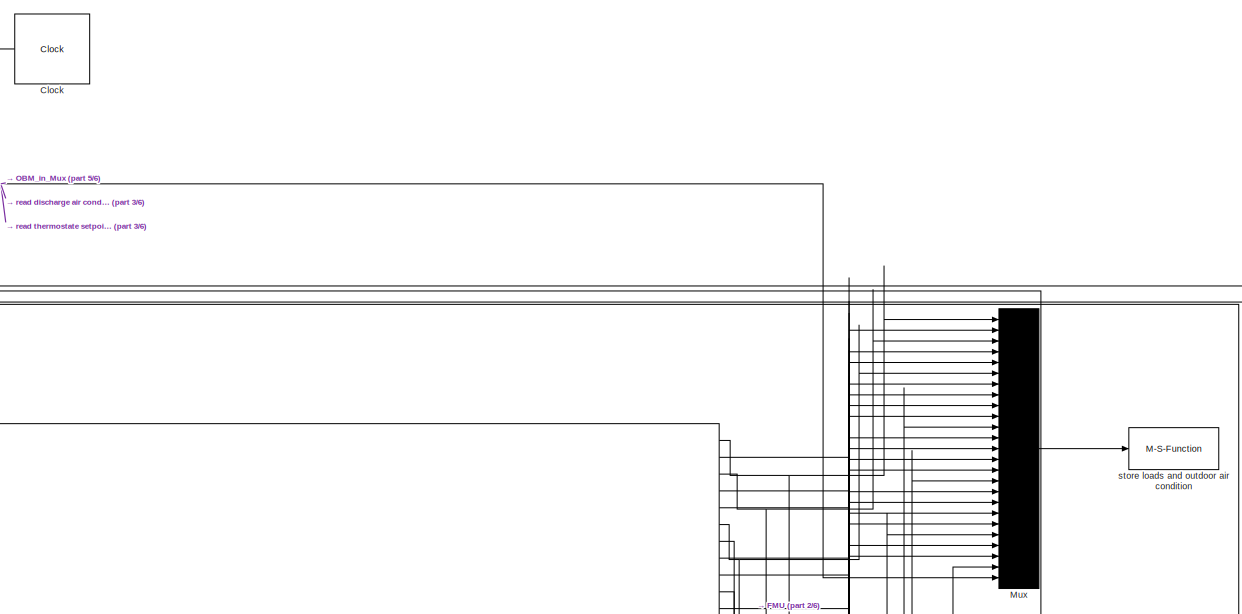
[diagram: root canvas - part 1/6, top right region]
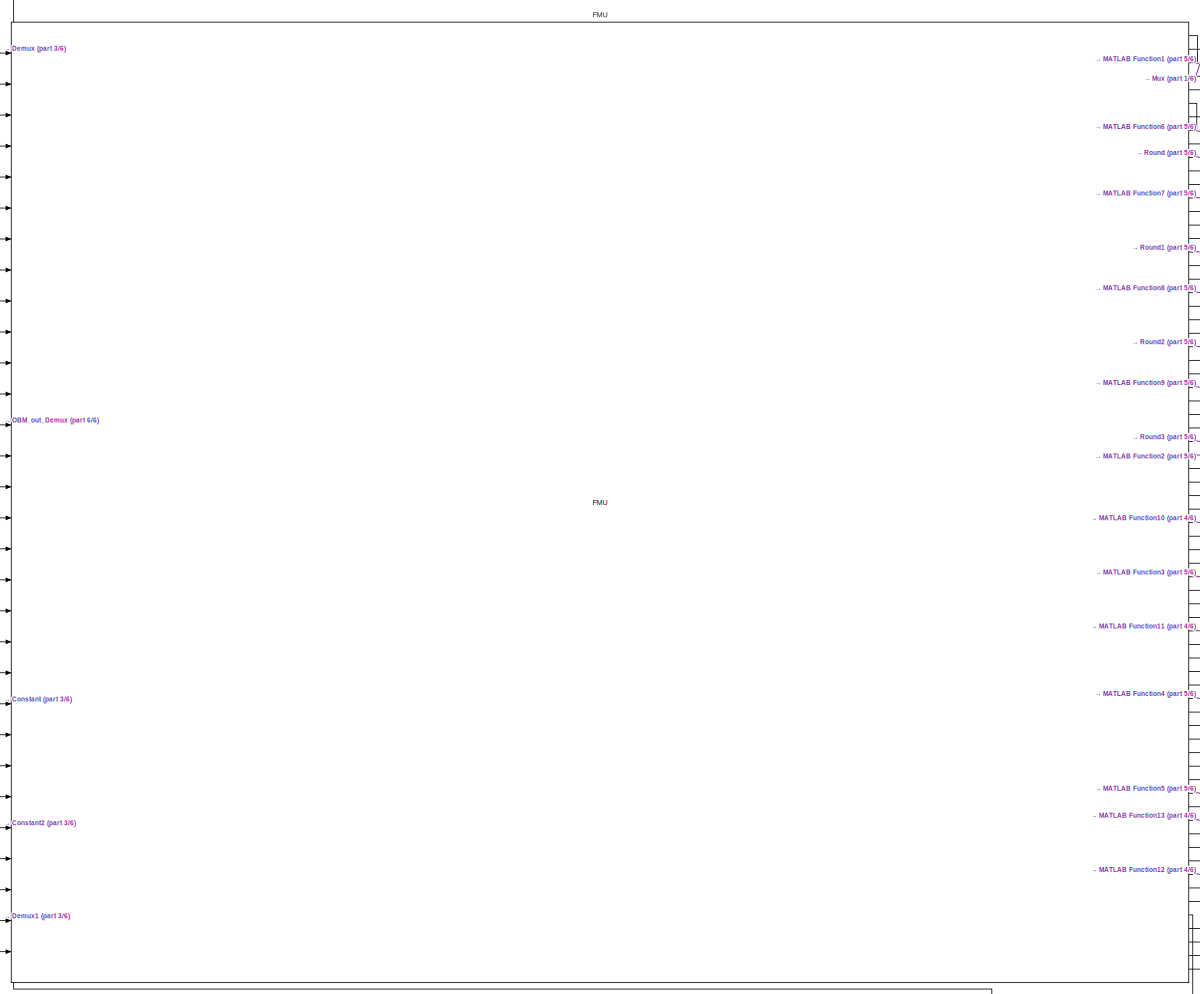
[diagram: root canvas - part 2/6, central region]
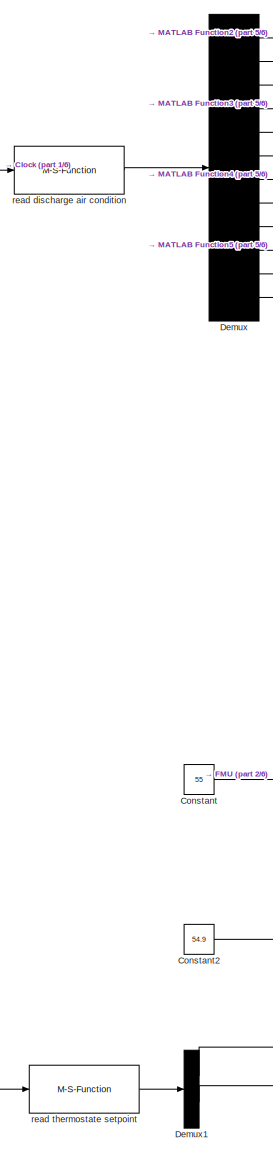
[diagram: root canvas - part 3/6, middle left region]
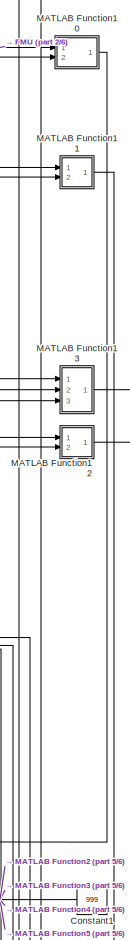
[diagram: root canvas - part 4/6, middle right region]
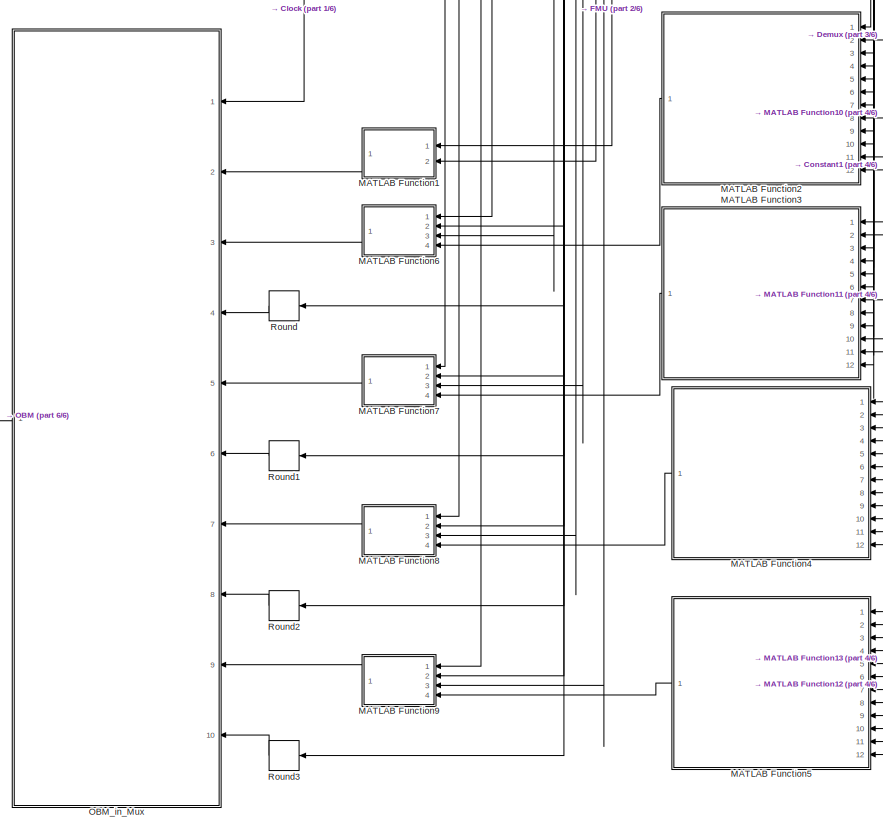
[diagram: root canvas - part 5/6, bottom right region]
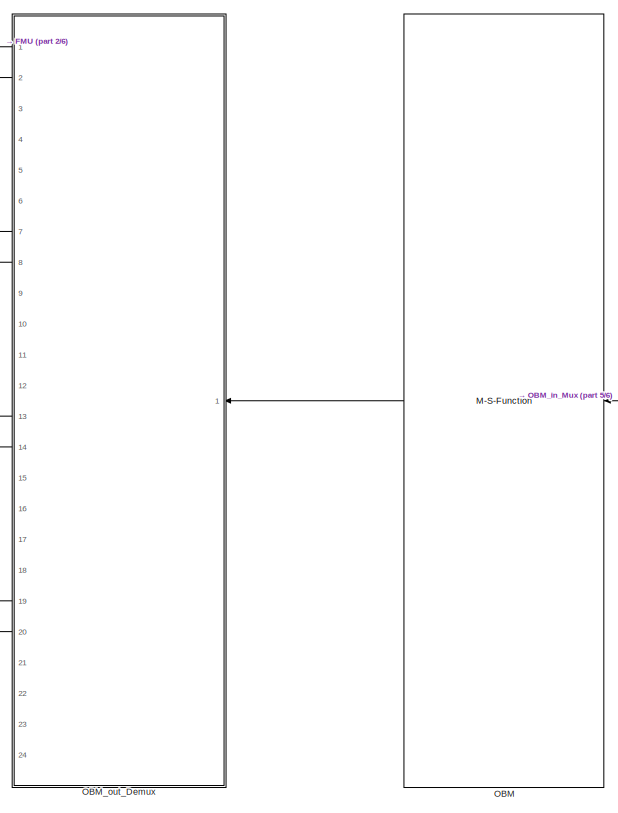
[diagram: root canvas - part 6/6, bottom center region]
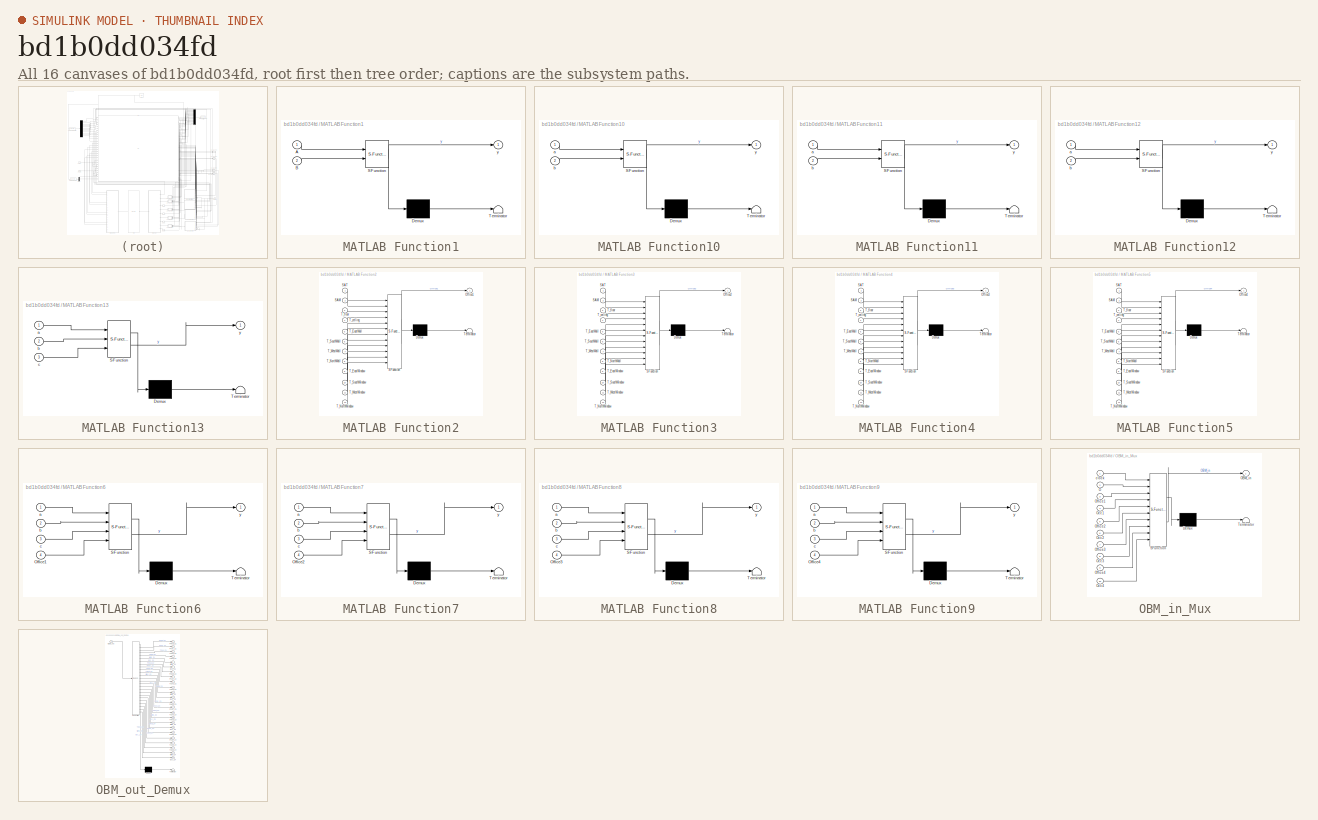
[diagram: thumbnail index - all 16 canvases of the model, root first then tree order]
MODEL slx_bd1b0dd034fd
KIND model
CONFIG AbsTol = auto
CONFIG EnableMultiTasking = off
CONFIG FixedStep = 60
CONFIG MaxStep = auto
CONFIG MinStep = auto
CONFIG RelTol = 1e-3
CONFIG SampleTimeConstraint = Unconstrained
CONFIG Solver = FixedStepAuto
CONFIG SolverName = FixedStepAuto
CONFIG StartTime = 20390400
CONFIG StopTime = 20563200
BLOCK [Clock] Clock
  DisplayTime = on
BLOCK [Constant] Constant
  Value = 55
BLOCK [Constant] Constant1
  Value = 999
BLOCK [Constant] Constant2
  Value = 54.9
BLOCK [Demux] Demux
  Outputs = 12
  Ports = [1, 12]
BLOCK [Demux] Demux1
  Outputs = 2
  Ports = [1, 2]
BLOCK [FMU] FMU
  FMUMode = CoSimulation
  FMUName = ASHRAE901_OfficeMedium_STD2019_AtlantaBaseline_ARP_Cooling_dense.fmu
  MaskDisplay = disp('ASHRAE901_OfficeMedium_STD2019_AtlantaBaseline.ARP_Cooling.idf');\nport_label('output',1,'T_out');\nport_label('output',2,'DewpointT_out');\nport_label('output',3,'RH_out');\nport_label('output',4,'ConfRoom_Mid_2 ZN_SenLoads');\nport_label('output',5,'ConfRoom_Mid_2 ZN_LatLoads');\nport_label('output',6,'ConfRoom_Mid_2 ZN_Temp');\nport_label('output',7,'ConfRoom_Mid_2 ZN_RadTemp');\nport_label('outp...<+5315ch>
  MaskType = ASHRAE901_OfficeMedium_STD2019_AtlantaBaseline.ARP_Cooling.idf [Co-Simulation, v2.0]
  Ports = [30, 70]
BLOCK [SubSystem] MATLAB Function1
  ErrorFcn = Stateflow.Translate.translate
  PermitHierarchicalResolution = ExplicitOnly
  Ports = [2, 1]
  RequestExecContextInheritance = off
  SFBlockType = MATLAB Function
  TreatAsAtomicUnit = on
BLOCK [Demux] MATLAB Function1/ Demux 
  Outputs = 1
  Ports = [1, 1]
BLOCK [S-Function] MATLAB Function1/ SFunction 
  EnableBusSupport = on
  FunctionName = sf_sfun
  PortCounts = [2 2]
  Ports = [2, 2]
  SFcnIsStateOwnerBlock = off
  SFunctionDeploymentMode = off
  Tag = Stateflow S-Function 1
BLOCK [Terminator] MATLAB Function1/ Terminator 
BLOCK [Inport] MATLAB Function1/A
BLOCK [Inport] MATLAB Function1/B
  Port = 2
BLOCK [Outport] MATLAB Function1/y
BLOCK [SubSystem] MATLAB Function10
  ErrorFcn = Stateflow.Translate.translate
  PermitHierarchicalResolution = ExplicitOnly
  Ports = [2, 1]
  RequestExecContextInheritance = off
  SFBlockType = MATLAB Function
  TreatAsAtomicUnit = on
BLOCK [Demux] MATLAB Function10/ Demux 
  Outputs = 1
  Ports = [1, 1]
BLOCK [S-Function] MATLAB Function10/ SFunction 
  EnableBusSupport = on
  FunctionName = sf_sfun
  PortCounts = [2 2]
  Ports = [2, 2]
  SFcnIsStateOwnerBlock = off
  SFunctionDeploymentMode = off
  Tag = Stateflow S-Function 11
BLOCK [Terminator] MATLAB Function10/ Terminator 
BLOCK [Inport] MATLAB Function10/a
BLOCK [Inport] MATLAB Function10/b
  Port = 2
BLOCK [Outport] MATLAB Function10/y
BLOCK [SubSystem] MATLAB Function11
  ErrorFcn = Stateflow.Translate.translate
  PermitHierarchicalResolution = ExplicitOnly
  Ports = [2, 1]
  RequestExecContextInheritance = off
  SFBlockType = MATLAB Function
  TreatAsAtomicUnit = on
BLOCK [Demux] MATLAB Function11/ Demux 
  Outputs = 1
  Ports = [1, 1]
BLOCK [S-Function] MATLAB Function11/ SFunction 
  EnableBusSupport = on
  FunctionName = sf_sfun
  PortCounts = [2 2]
  Ports = [2, 2]
  SFcnIsStateOwnerBlock = off
  SFunctionDeploymentMode = off
  Tag = Stateflow S-Function 12
BLOCK [Terminator] MATLAB Function11/ Terminator 
BLOCK [Inport] MATLAB Function11/a
BLOCK [Inport] MATLAB Function11/b
  Port = 2
BLOCK [Outport] MATLAB Function11/y
BLOCK [SubSystem] MATLAB Function12
  ErrorFcn = Stateflow.Translate.translate
  PermitHierarchicalResolution = ExplicitOnly
  Ports = [2, 1]
  RequestExecContextInheritance = off
  SFBlockType = MATLAB Function
  TreatAsAtomicUnit = on
BLOCK [Demux] MATLAB Function12/ Demux 
  Outputs = 1
  Ports = [1, 1]
BLOCK [S-Function] MATLAB Function12/ SFunction 
  EnableBusSupport = on
  FunctionName = sf_sfun
  PortCounts = [2 2]
  Ports = [2, 2]
  SFcnIsStateOwnerBlock = off
  SFunctionDeploymentMode = off
  Tag = Stateflow S-Function 13
BLOCK [Terminator] MATLAB Function12/ Terminator 
BLOCK [Inport] MATLAB Function12/a
BLOCK [Inport] MATLAB Function12/b
  Port = 2
BLOCK [Outport] MATLAB Function12/y
BLOCK [SubSystem] MATLAB Function13
  ErrorFcn = Stateflow.Translate.translate
  PermitHierarchicalResolution = ExplicitOnly
  Ports = [3, 1]
  RequestExecContextInheritance = off
  SFBlockType = MATLAB Function
  TreatAsAtomicUnit = on
BLOCK [Demux] MATLAB Function13/ Demux 
  Outputs = 1
  Ports = [1, 1]
BLOCK [S-Function] MATLAB Function13/ SFunction 
  EnableBusSupport = on
  FunctionName = sf_sfun
  PortCounts = [3 2]
  Ports = [3, 2]
  SFcnIsStateOwnerBlock = off
  SFunctionDeploymentMode = off
  Tag = Stateflow S-Function 14
BLOCK [Terminator] MATLAB Function13/ Terminator 
BLOCK [Inport] MATLAB Function13/a
BLOCK [Inport] MATLAB Function13/b
  Port = 2
BLOCK [Inport] MATLAB Function13/c
  Port = 3
BLOCK [Outport] MATLAB Function13/y
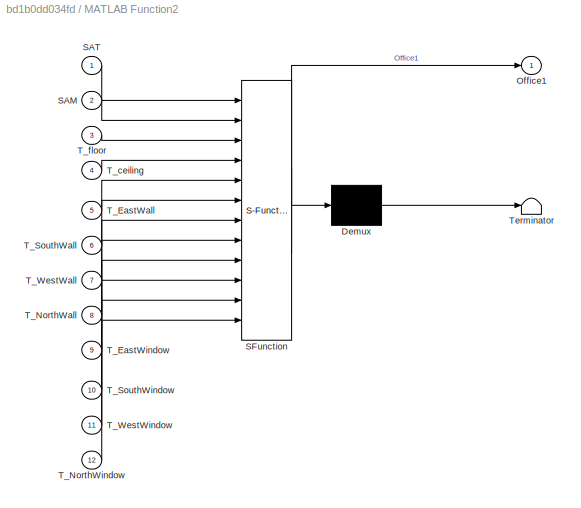
BLOCK [SubSystem] MATLAB Function2
  ErrorFcn = Stateflow.Translate.translate
  PermitHierarchicalResolution = ExplicitOnly
  Ports = [12, 1]
  RequestExecContextInheritance = off
  SFBlockType = MATLAB Function
  TreatAsAtomicUnit = on
BLOCK [Demux] MATLAB Function2/ Demux 
  Outputs = 1
  Ports = [1, 1]
BLOCK [S-Function] MATLAB Function2/ SFunction 
  EnableBusSupport = on
  FunctionName = sf_sfun
  PortCounts = [12 2]
  Ports = [12, 2]
  SFcnIsStateOwnerBlock = off
  SFunctionDeploymentMode = off
  Tag = Stateflow S-Function 3
BLOCK [Terminator] MATLAB Function2/ Terminator 
BLOCK [Outport] MATLAB Function2/Office1
BLOCK [Inport] MATLAB Function2/SAM
  Port = 2
BLOCK [Inport] MATLAB Function2/SAT
BLOCK [Inport] MATLAB Function2/T_EastWall
  Port = 5
BLOCK [Inport] MATLAB Function2/T_EastWindow
  Port = 9
BLOCK [Inport] MATLAB Function2/T_NorthWall
  Port = 8
BLOCK [Inport] MATLAB Function2/T_NorthWindow
  Port = 12
BLOCK [Inport] MATLAB Function2/T_SouthWall
  Port = 6
BLOCK [Inport] MATLAB Function2/T_SouthWindow
  Port = 10
BLOCK [Inport] MATLAB Function2/T_WestWall
  Port = 7
BLOCK [Inport] MATLAB Function2/T_WestWindow
  Port = 11
BLOCK [Inport] MATLAB Function2/T_ceiling
  Port = 4
BLOCK [Inport] MATLAB Function2/T_floor
  Port = 3
BLOCK [SubSystem] MATLAB Function3
  ErrorFcn = Stateflow.Translate.translate
  PermitHierarchicalResolution = ExplicitOnly
  Ports = [12, 1]
  RequestExecContextInheritance = off
  SFBlockType = MATLAB Function
  TreatAsAtomicUnit = on
BLOCK [Demux] MATLAB Function3/ Demux 
  Outputs = 1
  Ports = [1, 1]
BLOCK [S-Function] MATLAB Function3/ SFunction 
  EnableBusSupport = on
  FunctionName = sf_sfun
  PortCounts = [12 2]
  Ports = [12, 2]
  SFcnIsStateOwnerBlock = off
  SFunctionDeploymentMode = off
  Tag = Stateflow S-Function 4
BLOCK [Terminator] MATLAB Function3/ Terminator 
BLOCK [Outport] MATLAB Function3/Office2
BLOCK [Inport] MATLAB Function3/SAM
  Port = 2
BLOCK [Inport] MATLAB Function3/SAT
BLOCK [Inport] MATLAB Function3/T_EastWall
  Port = 5
BLOCK [Inport] MATLAB Function3/T_EastWindow
  Port = 9
BLOCK [Inport] MATLAB Function3/T_NorthWall
  Port = 8
BLOCK [Inport] MATLAB Function3/T_NorthWindow
  Port = 12
BLOCK [Inport] MATLAB Function3/T_SouthWall
  Port = 6
BLOCK [Inport] MATLAB Function3/T_SouthWindow
  Port = 10
BLOCK [Inport] MATLAB Function3/T_WestWall
  Port = 7
BLOCK [Inport] MATLAB Function3/T_WestWindow
  Port = 11
BLOCK [Inport] MATLAB Function3/T_ceiling
  Port = 4
BLOCK [Inport] MATLAB Function3/T_floor
  Port = 3
BLOCK [SubSystem] MATLAB Function4
  ErrorFcn = Stateflow.Translate.translate
  PermitHierarchicalResolution = ExplicitOnly
  Ports = [12, 1]
  RequestExecContextInheritance = off
  SFBlockType = MATLAB Function
  TreatAsAtomicUnit = on
BLOCK [Demux] MATLAB Function4/ Demux 
  Outputs = 1
  Ports = [1, 1]
BLOCK [S-Function] MATLAB Function4/ SFunction 
  EnableBusSupport = on
  FunctionName = sf_sfun
  PortCounts = [12 2]
  Ports = [12, 2]
  SFcnIsStateOwnerBlock = off
  SFunctionDeploymentMode = off
  Tag = Stateflow S-Function 5
BLOCK [Terminator] MATLAB Function4/ Terminator 
BLOCK [Outport] MATLAB Function4/Office3
BLOCK [Inport] MATLAB Function4/SAM
  Port = 2
BLOCK [Inport] MATLAB Function4/SAT
BLOCK [Inport] MATLAB Function4/T_EastWall
  Port = 5
BLOCK [Inport] MATLAB Function4/T_EastWindow
  Port = 9
BLOCK [Inport] MATLAB Function4/T_NorthWall
  Port = 8
BLOCK [Inport] MATLAB Function4/T_NorthWindow
  Port = 12
BLOCK [Inport] MATLAB Function4/T_SouthWall
  Port = 6
BLOCK [Inport] MATLAB Function4/T_SouthWindow
  Port = 10
BLOCK [Inport] MATLAB Function4/T_WestWall
  Port = 7
BLOCK [Inport] MATLAB Function4/T_WestWindow
  Port = 11
BLOCK [Inport] MATLAB Function4/T_ceiling
  Port = 4
BLOCK [Inport] MATLAB Function4/T_floor
  Port = 3
BLOCK [SubSystem] MATLAB Function5
  ErrorFcn = Stateflow.Translate.translate
  PermitHierarchicalResolution = ExplicitOnly
  Ports = [12, 1]
  RequestExecContextInheritance = off
  SFBlockType = MATLAB Function
  TreatAsAtomicUnit = on
BLOCK [Demux] MATLAB Function5/ Demux 
  Outputs = 1
  Ports = [1, 1]
BLOCK [S-Function] MATLAB Function5/ SFunction 
  EnableBusSupport = on
  FunctionName = sf_sfun
  PortCounts = [12 2]
  Ports = [12, 2]
  SFcnIsStateOwnerBlock = off
  SFunctionDeploymentMode = off
  Tag = Stateflow S-Function 6
BLOCK [Terminator] MATLAB Function5/ Terminator 
BLOCK [Outport] MATLAB Function5/Office4
BLOCK [Inport] MATLAB Function5/SAM
  Port = 2
BLOCK [Inport] MATLAB Function5/SAT
BLOCK [Inport] MATLAB Function5/T_EastWall
  Port = 5
BLOCK [Inport] MATLAB Function5/T_EastWindow
  Port = 9
BLOCK [Inport] MATLAB Function5/T_NorthWall
  Port = 8
BLOCK [Inport] MATLAB Function5/T_NorthWindow
  Port = 12
BLOCK [Inport] MATLAB Function5/T_SouthWall
  Port = 6
BLOCK [Inport] MATLAB Function5/T_SouthWindow
  Port = 10
BLOCK [Inport] MATLAB Function5/T_WestWall
  Port = 7
BLOCK [Inport] MATLAB Function5/T_WestWindow
  Port = 11
BLOCK [Inport] MATLAB Function5/T_ceiling
  Port = 4
BLOCK [Inport] MATLAB Function5/T_floor
  Port = 3
BLOCK [SubSystem] MATLAB Function6
  ErrorFcn = Stateflow.Translate.translate
  PermitHierarchicalResolution = ExplicitOnly
  Ports = [4, 1]
  RequestExecContextInheritance = off
  SFBlockType = MATLAB Function
  TreatAsAtomicUnit = on
BLOCK [Demux] MATLAB Function6/ Demux 
  Outputs = 1
  Ports = [1, 1]
BLOCK [S-Function] MATLAB Function6/ SFunction 
  EnableBusSupport = on
  FunctionName = sf_sfun
  PortCounts = [4 2]
  Ports = [4, 2]
  SFcnIsStateOwnerBlock = off
  SFunctionDeploymentMode = off
  Tag = Stateflow S-Function 7
BLOCK [Terminator] MATLAB Function6/ Terminator 
BLOCK [Inport] MATLAB Function6/Office1
  Port = 4
BLOCK [Inport] MATLAB Function6/a
BLOCK [Inport] MATLAB Function6/b
  Port = 2
BLOCK [Inport] MATLAB Function6/c
  Port = 3
BLOCK [Outport] MATLAB Function6/y
BLOCK [SubSystem] MATLAB Function7
  ErrorFcn = Stateflow.Translate.translate
  PermitHierarchicalResolution = ExplicitOnly
  Ports = [4, 1]
  RequestExecContextInheritance = off
  SFBlockType = MATLAB Function
  TreatAsAtomicUnit = on
BLOCK [Demux] MATLAB Function7/ Demux 
  Outputs = 1
  Ports = [1, 1]
BLOCK [S-Function] MATLAB Function7/ SFunction 
  EnableBusSupport = on
  FunctionName = sf_sfun
  PortCounts = [4 2]
  Ports = [4, 2]
  SFcnIsStateOwnerBlock = off
  SFunctionDeploymentMode = off
  Tag = Stateflow S-Function 8
BLOCK [Terminator] MATLAB Function7/ Terminator 
BLOCK [Inport] MATLAB Function7/Office2
  Port = 4
BLOCK [Inport] MATLAB Function7/a
BLOCK [Inport] MATLAB Function7/b
  Port = 2
BLOCK [Inport] MATLAB Function7/c
  Port = 3
BLOCK [Outport] MATLAB Function7/y
BLOCK [SubSystem] MATLAB Function8
  ErrorFcn = Stateflow.Translate.translate
  PermitHierarchicalResolution = ExplicitOnly
  Ports = [4, 1]
  RequestExecContextInheritance = off
  SFBlockType = MATLAB Function
  TreatAsAtomicUnit = on
BLOCK [Demux] MATLAB Function8/ Demux 
  Outputs = 1
  Ports = [1, 1]
BLOCK [S-Function] MATLAB Function8/ SFunction 
  EnableBusSupport = on
  FunctionName = sf_sfun
  PortCounts = [4 2]
  Ports = [4, 2]
  SFcnIsStateOwnerBlock = off
  SFunctionDeploymentMode = off
  Tag = Stateflow S-Function 9
BLOCK [Terminator] MATLAB Function8/ Terminator 
BLOCK [Inport] MATLAB Function8/Office3
  Port = 4
BLOCK [Inport] MATLAB Function8/a
BLOCK [Inport] MATLAB Function8/b
  Port = 2
BLOCK [Inport] MATLAB Function8/c
  Port = 3
BLOCK [Outport] MATLAB Function8/y
BLOCK [SubSystem] MATLAB Function9
  ErrorFcn = Stateflow.Translate.translate
  PermitHierarchicalResolution = ExplicitOnly
  Ports = [4, 1]
  RequestExecContextInheritance = off
  SFBlockType = MATLAB Function
  TreatAsAtomicUnit = on
BLOCK [Demux] MATLAB Function9/ Demux 
  Outputs = 1
  Ports = [1, 1]
BLOCK [S-Function] MATLAB Function9/ SFunction 
  EnableBusSupport = on
  FunctionName = sf_sfun
  PortCounts = [4 2]
  Ports = [4, 2]
  SFcnIsStateOwnerBlock = off
  SFunctionDeploymentMode = off
  Tag = Stateflow S-Function 10
BLOCK [Terminator] MATLAB Function9/ Terminator 
BLOCK [Inport] MATLAB Function9/Office4
  Port = 4
BLOCK [Inport] MATLAB Function9/a
BLOCK [Inport] MATLAB Function9/b
  Port = 2
BLOCK [Inport] MATLAB Function9/c
  Port = 3
BLOCK [Outport] MATLAB Function9/y
BLOCK [Mux] Mux
  DisplayOption = bar
  Inputs = 25
  Ports = [25, 1]
BLOCK [M-S-Function] OBM
  FunctionName = OBMmain
  Ports = [1, 1]
BLOCK [SubSystem] OBM_in_Mux
  ErrorFcn = Stateflow.Translate.translate
  PermitHierarchicalResolution = ExplicitOnly
  Ports = [10, 1]
  RequestExecContextInheritance = off
  SFBlockType = MATLAB Function
  TreatAsAtomicUnit = on
BLOCK [Demux] OBM_in_Mux/ Demux 
  Outputs = 1
  Ports = [1, 1]
BLOCK [S-Function] OBM_in_Mux/ SFunction 
  EnableBusSupport = on
  FunctionName = sf_sfun
  PortCounts = [10 2]
  Ports = [10, 2]
  SFcnIsStateOwnerBlock = off
  SFunctionDeploymentMode = off
  Tag = Stateflow S-Function 2
BLOCK [Terminator] OBM_in_Mux/ Terminator 
BLOCK [Inport] OBM_in_Mux/O
  Port = 2
BLOCK [Outport] OBM_in_Mux/OBM_in
BLOCK [Inport] OBM_in_Mux/Occ1
  Port = 4
BLOCK [Inport] OBM_in_Mux/Occ2
  Port = 6
BLOCK [Inport] OBM_in_Mux/Occ3
  Port = 8
BLOCK [Inport] OBM_in_Mux/Occ4
  Port = 10
BLOCK [Inport] OBM_in_Mux/Office1
  Port = 3
BLOCK [Inport] OBM_in_Mux/Office2
  Port = 5
BLOCK [Inport] OBM_in_Mux/Office3
  Port = 7
BLOCK [Inport] OBM_in_Mux/Office4
  Port = 9
BLOCK [Inport] OBM_in_Mux/clock
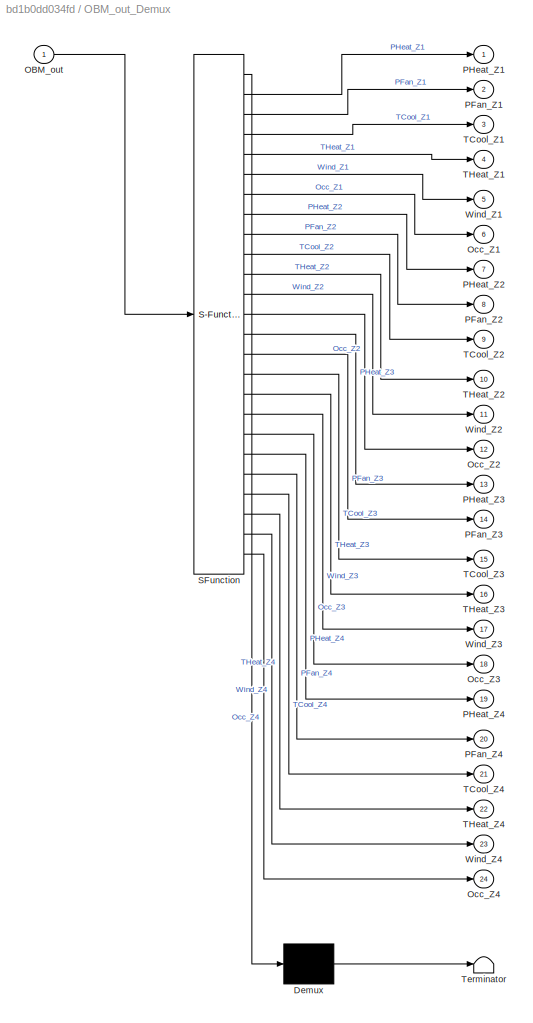
BLOCK [SubSystem] OBM_out_Demux
  ErrorFcn = Stateflow.Translate.translate
  PermitHierarchicalResolution = ExplicitOnly
  Ports = [1, 24]
  RequestExecContextInheritance = off
  SFBlockType = MATLAB Function
  TreatAsAtomicUnit = on
BLOCK [Demux] OBM_out_Demux/ Demux 
  Outputs = 1
  Ports = [1, 1]
BLOCK [S-Function] OBM_out_Demux/ SFunction 
  EnableBusSupport = on
  FunctionName = sf_sfun
  PortCounts = [1 25]
  Ports = [1, 25]
  SFcnIsStateOwnerBlock = off
  SFunctionDeploymentMode = off
  Tag = Stateflow S-Function 15
BLOCK [Terminator] OBM_out_Demux/ Terminator 
BLOCK [Inport] OBM_out_Demux/OBM_out
BLOCK [Outport] OBM_out_Demux/Occ_Z1
  Port = 6
BLOCK [Outport] OBM_out_Demux/Occ_Z2
  Port = 12
BLOCK [Outport] OBM_out_Demux/Occ_Z3
  Port = 18
BLOCK [Outport] OBM_out_Demux/Occ_Z4
  Port = 24
BLOCK [Outport] OBM_out_Demux/PFan_Z1
  Port = 2
BLOCK [Outport] OBM_out_Demux/PFan_Z2
  Port = 8
BLOCK [Outport] OBM_out_Demux/PFan_Z3
  Port = 14
BLOCK [Outport] OBM_out_Demux/PFan_Z4
  Port = 20
BLOCK [Outport] OBM_out_Demux/PHeat_Z1
BLOCK [Outport] OBM_out_Demux/PHeat_Z2
  Port = 7
BLOCK [Outport] OBM_out_Demux/PHeat_Z3
  Port = 13
BLOCK [Outport] OBM_out_Demux/PHeat_Z4
  Port = 19
BLOCK [Outport] OBM_out_Demux/TCool_Z1
  Port = 3
BLOCK [Outport] OBM_out_Demux/TCool_Z2
  Port = 9
BLOCK [Outport] OBM_out_Demux/TCool_Z3
  Port = 15
BLOCK [Outport] OBM_out_Demux/TCool_Z4
  Port = 21
BLOCK [Outport] OBM_out_Demux/THeat_Z1
  Port = 4
BLOCK [Outport] OBM_out_Demux/THeat_Z2
  Port = 10
BLOCK [Outport] OBM_out_Demux/THeat_Z3
  Port = 16
BLOCK [Outport] OBM_out_Demux/THeat_Z4
  Port = 22
BLOCK [Outport] OBM_out_Demux/Wind_Z1
  Port = 5
BLOCK [Outport] OBM_out_Demux/Wind_Z2
  Port = 11
BLOCK [Outport] OBM_out_Demux/Wind_Z3
  Port = 17
BLOCK [Outport] OBM_out_Demux/Wind_Z4
  Port = 23
BLOCK [Rounding] Round
  Operator = round
BLOCK [Rounding] Round1
  Operator = round
BLOCK [Rounding] Round2
  Operator = round
BLOCK [Rounding] Round3
  Operator = round
BLOCK [M-S-Function] read discharge air condition
  FunctionName = DBread_DisAirCond
  Ports = [1, 1]
BLOCK [M-S-Function] read thermostate setpoint
  FunctionName = DBread_ThermSptCtrlSig
  Ports = [1, 1]
BLOCK [M-S-Function] store loads and outdoor air condition
  FunctionName = DBwrite_ZoneInfo
  Ports = [1, 1]
NET Clock:1 -> Mux:25, OBM_in_Mux:1, read discharge air condition:1, read thermostate setpoint:1
NET Constant1:1 -> MATLAB Function2:11, MATLAB Function2:12, MATLAB Function3:10, MATLAB Function3:11, MATLAB Function4:10, MATLAB Function4:12, MATLAB Function4:9, MATLAB Function5:10, MATLAB Function5:11, MATLAB Function5:12, MATLAB Function5:9
NET Constant2:1 -> FMU:25, FMU:26, FMU:27, FMU:28
NET Constant:1 -> FMU:21, FMU:22, FMU:23, FMU:24
LINE Demux1:1 -> FMU:29
LINE Demux1:2 -> FMU:30
NET Demux:1 -> FMU:1, MATLAB Function2:2
NET Demux:10 -> FMU:4, MATLAB Function5:2
NET Demux:11 -> FMU:8, MATLAB Function5:1
LINE Demux:12 -> FMU:12
NET Demux:2 -> FMU:5, MATLAB Function2:1
LINE Demux:3 -> FMU:9
NET Demux:4 -> FMU:2, MATLAB Function3:2
NET Demux:5 -> FMU:6, MATLAB Function3:1
LINE Demux:6 -> FMU:10
NET Demux:7 -> FMU:3, MATLAB Function4:2
NET Demux:8 -> FMU:7, MATLAB Function4:1
LINE Demux:9 -> FMU:11
NET FMU:1 -> MATLAB Function1:1, Mux:1
LINE FMU:10 -> Round:1
LINE FMU:11 -> Mux:9
LINE FMU:12 -> Mux:10
NET FMU:13 -> MATLAB Function7:1, Mux:11
LINE FMU:14 -> MATLAB Function7:2
LINE FMU:15 -> Mux:12
LINE FMU:16 -> Mux:13
LINE FMU:17 -> Round1:1
LINE FMU:18 -> Mux:14
LINE FMU:19 -> Mux:15
LINE FMU:2 -> Mux:2
NET FMU:20 -> MATLAB Function8:1, Mux:16
LINE FMU:21 -> MATLAB Function8:2
LINE FMU:22 -> Mux:17
LINE FMU:23 -> Mux:18
LINE FMU:24 -> Round2:1
LINE FMU:25 -> Mux:19
LINE FMU:26 -> Mux:20
NET FMU:27 -> MATLAB Function9:1, Mux:21
LINE FMU:28 -> MATLAB Function9:2
LINE FMU:29 -> Mux:22
NET FMU:3 -> MATLAB Function1:2, Mux:3
LINE FMU:30 -> Mux:23
LINE FMU:31 -> Round3:1
LINE FMU:32 -> MATLAB Function2:3
LINE FMU:33 -> MATLAB Function2:4
LINE FMU:34 -> MATLAB Function2:5
LINE FMU:35 -> MATLAB Function2:6
LINE FMU:36 -> MATLAB Function2:7
LINE FMU:37 -> MATLAB Function10:1
LINE FMU:38 -> MATLAB Function10:2
LINE FMU:39 -> MATLAB Function2:9
LINE FMU:4 -> Mux:4
LINE FMU:40 -> MATLAB Function2:10
LINE FMU:41 -> MATLAB Function3:3
LINE FMU:42 -> MATLAB Function3:4
LINE FMU:43 -> MATLAB Function3:5
LINE FMU:44 -> MATLAB Function3:6
LINE FMU:45 -> MATLAB Function11:1
LINE FMU:46 -> MATLAB Function11:2
LINE FMU:47 -> MATLAB Function3:8
LINE FMU:48 -> MATLAB Function3:12
LINE FMU:49 -> MATLAB Function3:9
LINE FMU:5 -> Mux:5
LINE FMU:50 -> MATLAB Function4:3
LINE FMU:51 -> MATLAB Function4:4
LINE FMU:52 -> MATLAB Function4:5
LINE FMU:53 -> MATLAB Function4:6
LINE FMU:54 -> MATLAB Function4:7
LINE FMU:55 -> MATLAB Function4:8
LINE FMU:56 -> MATLAB Function4:11
LINE FMU:57 -> MATLAB Function5:3
LINE FMU:58 -> MATLAB Function5:4
LINE FMU:59 -> MATLAB Function13:1
NET FMU:6 -> MATLAB Function6:1, Mux:6
LINE FMU:60 -> MATLAB Function13:2
LINE FMU:61 -> MATLAB Function13:3
LINE FMU:62 -> MATLAB Function5:6
LINE FMU:63 -> MATLAB Function12:1
LINE FMU:64 -> MATLAB Function12:2
LINE FMU:65 -> MATLAB Function5:8
LINE FMU:66 -> MATLAB Function6:3
LINE FMU:67 -> MATLAB Function7:3
LINE FMU:68 -> MATLAB Function8:3
LINE FMU:69 -> MATLAB Function9:3
LINE FMU:7 -> MATLAB Function6:2
LINE FMU:70 -> Mux:24
LINE FMU:8 -> Mux:7
LINE FMU:9 -> Mux:8
LINE MATLAB Function10:1 -> MATLAB Function2:8
LINE MATLAB Function11:1 -> MATLAB Function3:7
LINE MATLAB Function12:1 -> MATLAB Function5:7
LINE MATLAB Function13:1 -> MATLAB Function5:5
LINE MATLAB Function1:1 -> OBM_in_Mux:2
LINE MATLAB Function2:1 -> MATLAB Function6:4
LINE MATLAB Function3:1 -> MATLAB Function7:4
LINE MATLAB Function4:1 -> MATLAB Function8:4
LINE MATLAB Function5:1 -> MATLAB Function9:4
LINE MATLAB Function6:1 -> OBM_in_Mux:3
LINE MATLAB Function7:1 -> OBM_in_Mux:5
LINE MATLAB Function8:1 -> OBM_in_Mux:7
LINE MATLAB Function9:1 -> OBM_in_Mux:9
LINE Mux:1 -> store loads and outdoor air condition:1
LINE OBM:1 -> OBM_out_Demux:1
LINE OBM_in_Mux:1 -> OBM:1
LINE OBM_out_Demux:1 -> FMU:13
LINE OBM_out_Demux:13 -> FMU:15
LINE OBM_out_Demux:14 -> FMU:19
LINE OBM_out_Demux:19 -> FMU:16
LINE OBM_out_Demux:2 -> FMU:17
LINE OBM_out_Demux:20 -> FMU:20
LINE OBM_out_Demux:7 -> FMU:14
LINE OBM_out_Demux:8 -> FMU:18
LINE Round1:1 -> OBM_in_Mux:6
LINE Round2:1 -> OBM_in_Mux:8
LINE Round3:1 -> OBM_in_Mux:10
LINE Round:1 -> OBM_in_Mux:4
LINE read discharge air condition:1 -> Demux:1
LINE read thermostate setpoint:1 -> Demux1:1
note: NET lines group one-source signal fan-out (src -> all destinations, sorted); 1:1 wires keep LINE
CHART MATLAB Function5 states=1 transitions=1
  STATE_LABEL 'eML_blk_kernel()'
  STATE_LABEL 'SCRIPT:\nfunction Office4 = fcn(SAT,SAM,T_floor,T_ceiling,T_EastWall,T_SouthWall,T_WestWall,T_NorthWall,...\n    T_EastWindow,T_SouthWindow,T_WestWindow,T_NorthWindow)\nOffice4=[SAT,SAM,T_floor,T_ceiling,T_EastWall,T_SouthWall,T_WestWall,T_NorthWall,...\n    T_EastWindow,T_SouthWindow,T_WestWindow,T_NorthWindow];\n'
CHART MATLAB Function6 states=1 transitions=1
  STATE_LABEL 'eML_blk_kernel()'
  STATE_LABEL 'SCRIPT:\nfunction y = fcn(a, b, c, Office1)\n\ny = [a b c Office1];\n'
CHART MATLAB Function7 states=1 transitions=1
  STATE_LABEL 'eML_blk_kernel()'
  STATE_LABEL 'SCRIPT:\nfunction y = fcn(a, b, c, Office2)\n\ny = [a b c Office2];\n'
CHART MATLAB Function8 states=1 transitions=1
  STATE_LABEL 'eML_blk_kernel()'
  STATE_LABEL 'SCRIPT:\nfunction y = fcn(a, b, c, Office3)\n\ny = [a b c Office3];\n'
CHART MATLAB Function9 states=1 transitions=1
  STATE_LABEL 'eML_blk_kernel()'
  STATE_LABEL 'SCRIPT:\nfunction y = fcn(a, b, c, Office4)\n\ny = [a b c Office4];\n'
CHART MATLAB Function10 states=1 transitions=1
  STATE_LABEL 'eML_blk_kernel()'
  STATE_LABEL 'SCRIPT:\nfunction y = fcn(a,b)\nu=(a+b)/2;\ny = u;\n'
CHART MATLAB Function11 states=1 transitions=1
  STATE_LABEL 'eML_blk_kernel()'
  STATE_LABEL 'SCRIPT:\nfunction y = fcn(a,b)\nu=(a+b)/2;\ny = u;\n'
CHART MATLAB Function12 states=1 transitions=1
  STATE_LABEL 'eML_blk_kernel()'
  STATE_LABEL 'SCRIPT:\nfunction y = fcn(a,b)\nu=(a+b)/2;\ny = u;\n'
CHART MATLAB Function13 states=1 transitions=1
  STATE_LABEL 'eML_blk_kernel()'
  STATE_LABEL 'SCRIPT:\nfunction y = fcn(a,b,c)\nu=(a+b+c)/3;\ny = u;\n'
CHART OBM_out_Demux states=1 transitions=1
  STATE_LABEL 'eML_blk_kernel()'
  STATE_LABEL 'SCRIPT:\nfunction [PHeat_Z1,PFan_Z1,TCool_Z1,THeat_Z1,Wind_Z1,Occ_Z1,...\n    PHeat_Z2,PFan_Z2,TCool_Z2,THeat_Z2,Wind_Z2,Occ_Z2,...\n    PHeat_Z3,PFan_Z3,TCool_Z3,THeat_Z3,Wind_Z3,Occ_Z3,...\n    PHeat_Z4,PFan_Z4,TCool_Z4,THeat_Z4,Wind_Z4,Occ_Z4] = fcn(OBM_out)\n\nPHeat_Z1 = OBM_out(1);\nPFan_Z1 = OBM_out(2);\nTCool_Z1 = OBM_out(3);\nTHeat_Z1 = OBM_out(4);\nWind_Z1 = OBM_out(5);\nOcc_Z1 = OBM_out(6);\nPHeat_Z...<+411ch>'
CHART MATLAB Function1 states=1 transitions=1
  STATE_LABEL 'eML_blk_kernel()'
  STATE_LABEL 'SCRIPT:\nfunction y = fcn(A,B)\n\ny = [A B];\n'
CHART OBM_in_Mux states=1 transitions=1
  STATE_LABEL 'eML_blk_kernel()'
  STATE_LABEL "SCRIPT:\nfunction OBM_in = fcn(clock,O,Office1,Occ1,Office2,Occ2,...\n    Office3,Occ3,Office4,Occ4)\n% Assemble OBM inputs\nOBM_in=[clock,O,Office1,Occ1,Office2,Occ2,Office3,Occ3,Office4,Occ4]';\n"
CHART MATLAB Function2 states=1 transitions=1
  STATE_LABEL 'eML_blk_kernel()'
  STATE_LABEL 'SCRIPT:\nfunction Office1 = fcn(SAT,SAM,T_floor,T_ceiling,T_EastWall,T_SouthWall,T_WestWall,T_NorthWall,...\n    T_EastWindow,T_SouthWindow,T_WestWindow,T_NorthWindow)\nOffice1=[SAT,SAM,T_floor,T_ceiling,T_EastWall,T_SouthWall,T_WestWall,T_NorthWall,...\n    T_EastWindow,T_SouthWindow,T_WestWindow,T_NorthWindow];\n'
CHART MATLAB Function3 states=1 transitions=1
  STATE_LABEL 'eML_blk_kernel()'
  STATE_LABEL 'SCRIPT:\nfunction Office2 = fcn(SAT,SAM,T_floor,T_ceiling,T_EastWall,T_SouthWall,T_WestWall,T_NorthWall,...\n    T_EastWindow,T_SouthWindow,T_WestWindow,T_NorthWindow)\nOffice2=[SAT,SAM,T_floor,T_ceiling,T_EastWall,T_SouthWall,T_WestWall,T_NorthWall,...\n    T_EastWindow,T_SouthWindow,T_WestWindow,T_NorthWindow];\n'
CHART MATLAB Function4 states=1 transitions=1
  STATE_LABEL 'eML_blk_kernel()'
  STATE_LABEL 'SCRIPT:\nfunction Office3 = fcn(SAT,SAM,T_floor,T_ceiling,T_EastWall,T_SouthWall,T_WestWall,T_NorthWall,...\n    T_EastWindow,T_SouthWindow,T_WestWindow,T_NorthWindow)\nOffice3=[SAT,SAM,T_floor,T_ceiling,T_EastWall,T_SouthWall,T_WestWall,T_NorthWall,...\n    T_EastWindow,T_SouthWindow,T_WestWindow,T_NorthWindow];\n'
CHART  states=0 transitions=0
CHART  states=0 transitions=0
CHART  states=0 transitions=0
CHART  states=0 transitions=0
CHART  states=0 transitions=0
CHART  states=0 transitions=0
CHART  states=0 transitions=0
CHART  states=0 transitions=0
CHART  states=0 transitions=0
CHART  states=0 transitions=0
CHART  states=0 transitions=0
CHART  states=0 transitions=0
CHART  states=0 transitions=0
CHART  states=0 transitions=0
CHART  states=0 transitions=0
